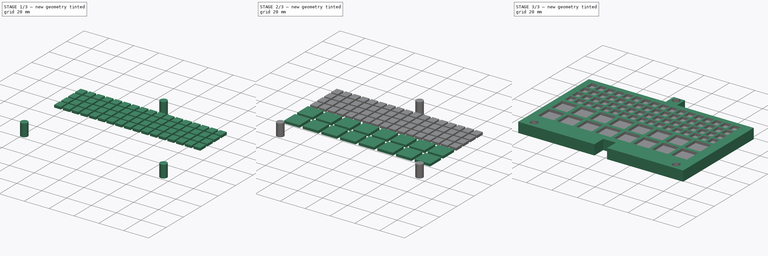
[diagram: build sequence overview — one tinted view per stage of 3, left to right]
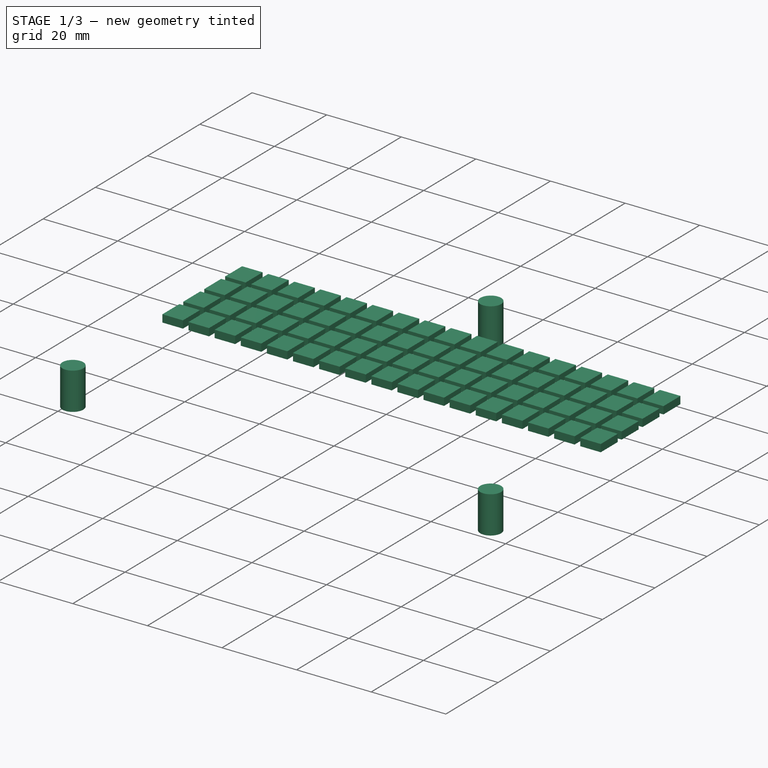
[diagram: stage 1 of 3 — iso view after this stage's code; geometry added in this stage tinted green]
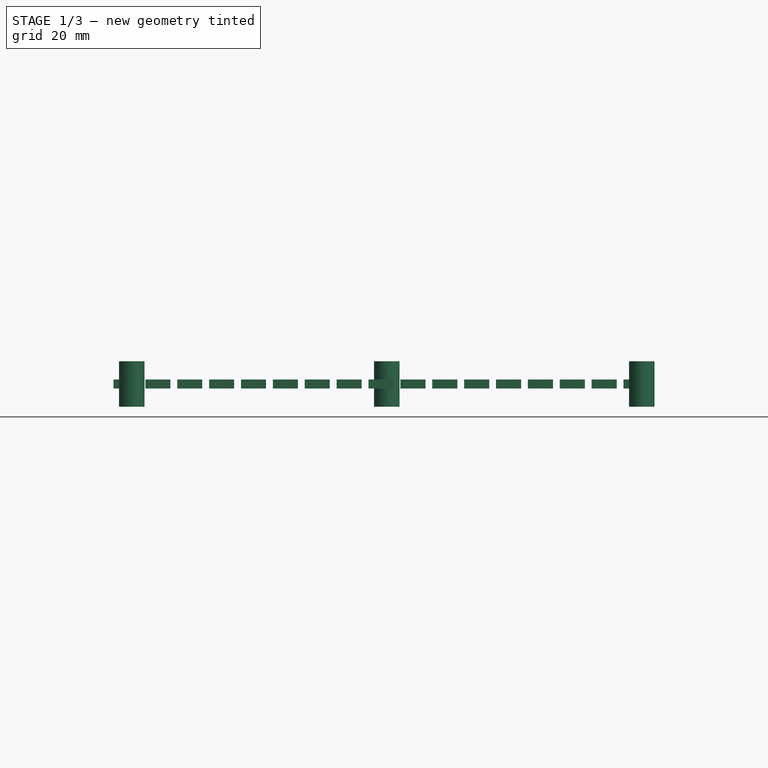
[diagram: stage 1 of 3 — front view after this stage's code; geometry added in this stage tinted green]
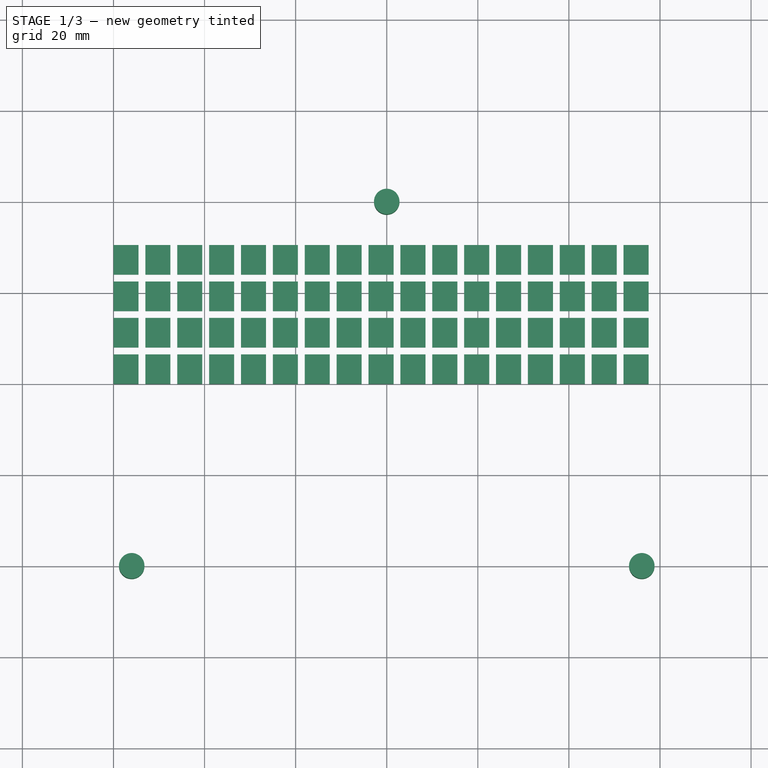
[diagram: stage 1 of 3 — top view after this stage's code; geometry added in this stage tinted green]
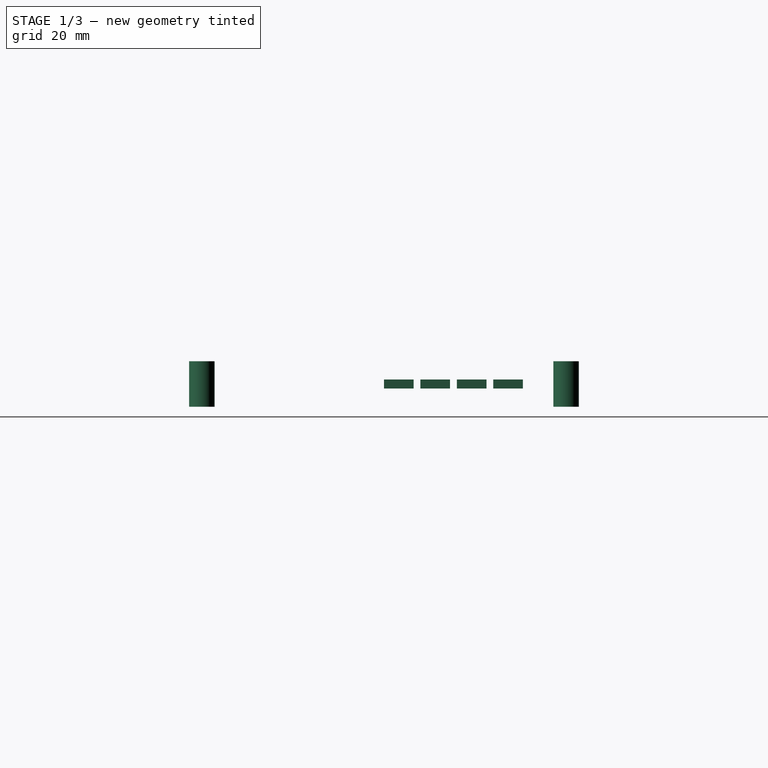
[diagram: stage 1 of 3 — right view after this stage's code; geometry added in this stage tinted green]
FCSTD DOCUMENT  (FreeCAD 0.17R13298 (Git))
Label: tray-lqfp64-so8
License: All rights reserved
LicenseURL: http://en.wikipedia.org/wiki/All_rights_reserved
objects: Sketcher::SketchObject×2, Part::Extrusion×2, Part::Box×2, Part::FeaturePython×2, Part::MultiFuse×1, Part::Cut×1
note: 10 computed .brp shape members not serialized (recipe doc carries the construction recipe); baked Part::Feature solids carry a one-line shape summary decoded from their .brp

FEATURE [Part::Box] Box001  label="Cube001"
  AttacherType = Attacher::AttachEngine3D
  Height = 2
  Length = 5.5
  Placement = pos=(-60,0,6) rot=(0,0,1;0rad)
  Width = 6.5
FEATURE [Part::FeaturePython] Array001  # Draft array (typed FeaturePython)
  Angle = 360
  ArrayType = 0
  Axis = (0,0,1)
  Base = -> Box001
  Center = (0,0,0)
  Fuse = false
  IntervalAxis = (0,0,0)
  IntervalX = (7,0,0)
  IntervalY = (0,8,0)
  IntervalZ = (0,0,0)
  NumberPolar = 1
  NumberX = 17
  NumberY = 4
  NumberZ = 1
FEATURE [Sketcher::SketchObject] Sketch001
  sketch-geometry (7):
    g0: LineSegment [constr] StartX=-56 StartY=40 StartZ=0 EndX=56 EndY=40 EndZ=0
    g1: LineSegment [constr] StartX=56 StartY=40 StartZ=0 EndX=56 EndY=-40 EndZ=0
    g2: LineSegment [constr] StartX=56 StartY=-40 StartZ=0 EndX=-56 EndY=-40 EndZ=0
    g3: LineSegment [constr] StartX=-56 StartY=-40 StartZ=0 EndX=-56 EndY=40 EndZ=0
    g4: Circle CenterX=0 CenterY=40 CenterZ=0 NormalX=0 NormalY=0 NormalZ=1 AngleXU=0 Radius=2.8
    g5: Circle CenterX=56 CenterY=-40 CenterZ=0 NormalX=0 NormalY=0 NormalZ=1 AngleXU=0 Radius=2.8
    g6: Circle CenterX=-56 CenterY=-40 CenterZ=0 NormalX=0 NormalY=0 NormalZ=1 AngleXU=0 Radius=2.8
  constraints (19):
    c: Coincident(g0,g1)
    c: Coincident(g1,g2)
    c: Coincident(g2,g3)
    c: Coincident(g3,g0)
    c: Horizontal(g0)
    c: Horizontal(g2)
    c: Vertical(g1)
    c: Vertical(g3)
    c: DistanceX(g0,g0) = 112
    c: DistanceY(g3,g3) = 80
    c: Symmetric(g0,g0,g-2)
    c: Symmetric(g0,g2,g-1)
    c: PointOnObject(g4,g-2)
    c: Coincident(g5,g1)
    c: Coincident(g6,g2)
    c: Radius(g6) = 2.8
    c: Equal(g6,g5)
    c: Equal(g6,g4)
    c: PointOnObject(g4,g0)
FEATURE [Part::Extrusion] Extrude001
  Base = -> Sketch001
  Dir = (0,0,1)
  DirMode = 2
  FaceMakerClass = Part::FaceMakerBullseye
  LengthFwd = 10
  LengthRev = 0
  Placement = pos=(0,0,2) rot=(0,0,1;0rad)
  Solid = true
  Symmetric = false
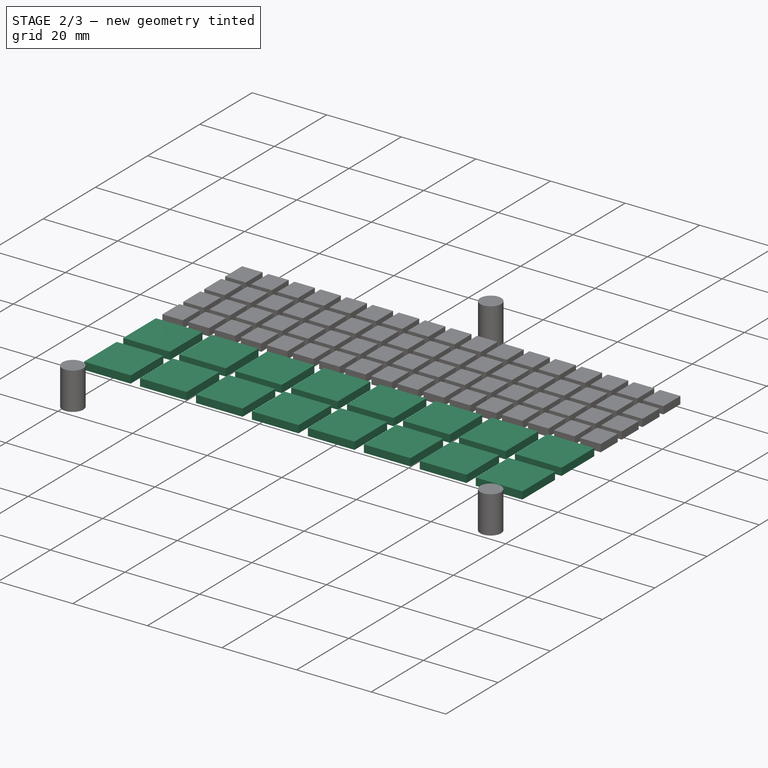
[diagram: stage 2 of 3 — iso view after this stage's code; geometry added in this stage tinted green]
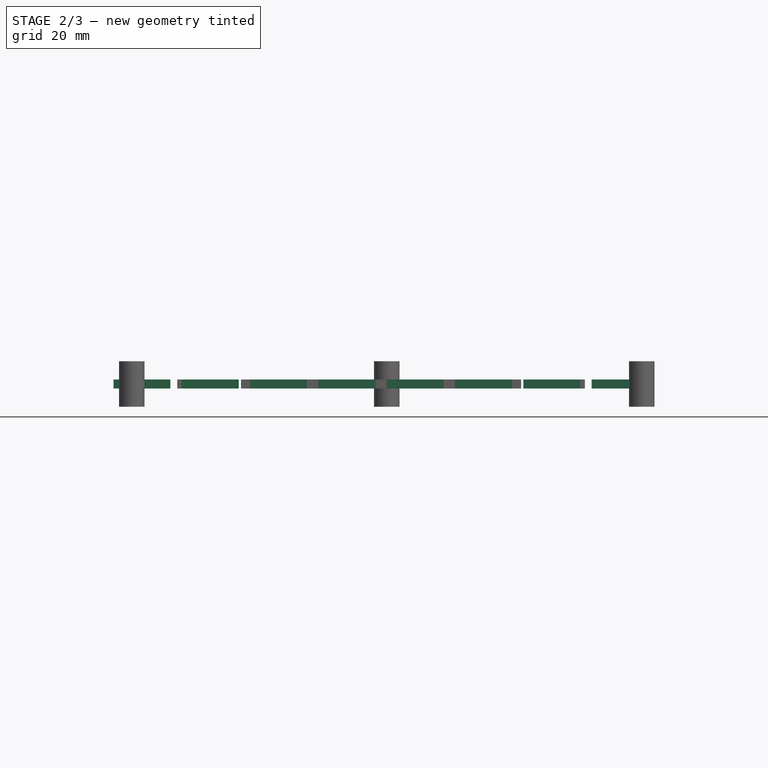
[diagram: stage 2 of 3 — front view after this stage's code; geometry added in this stage tinted green]
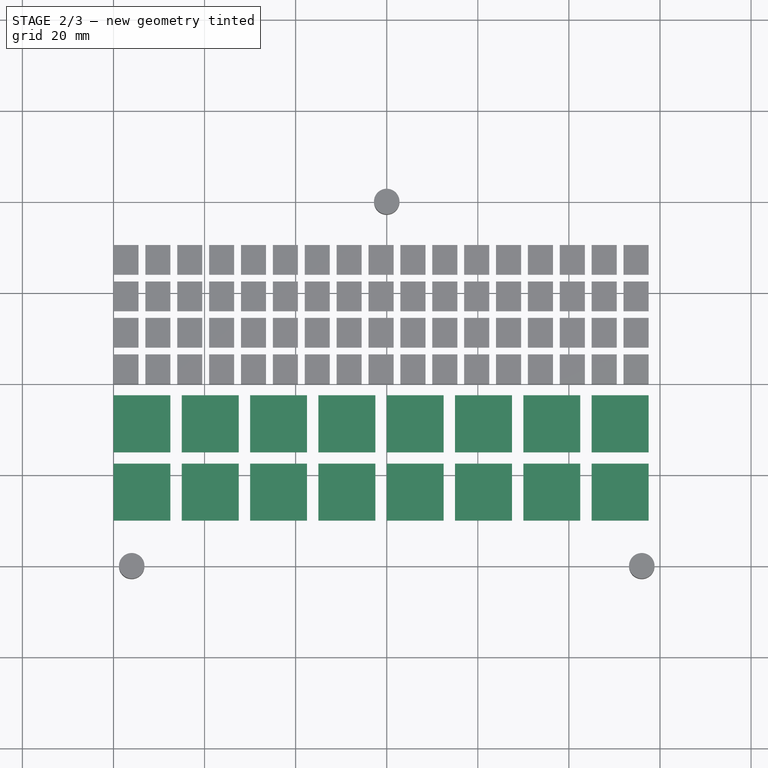
[diagram: stage 2 of 3 — top view after this stage's code; geometry added in this stage tinted green]
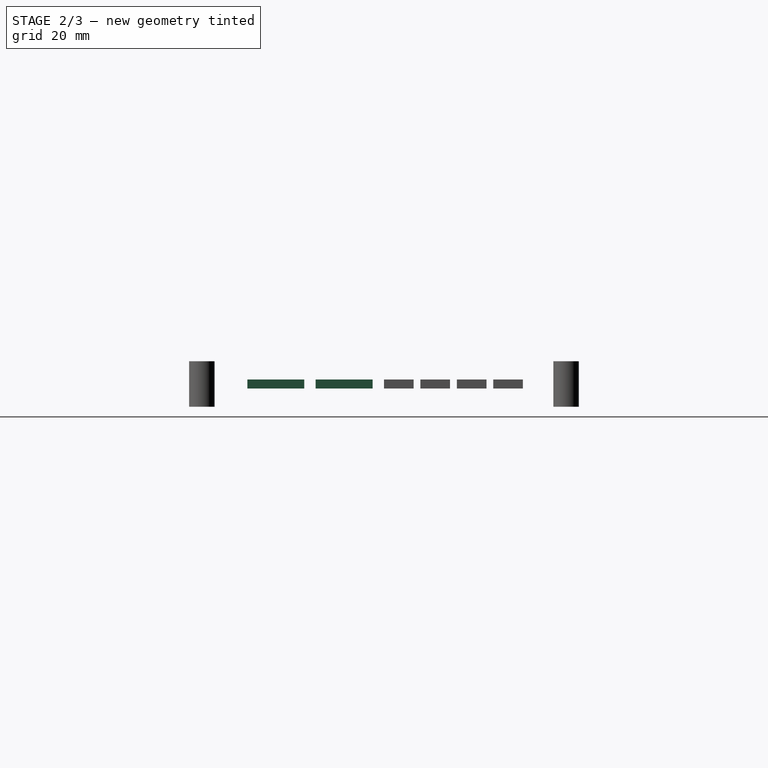
[diagram: stage 2 of 3 — right view after this stage's code; geometry added in this stage tinted green]
FEATURE [Part::Box] Box  label="Cube"
  AttacherType = Attacher::AttachEngine3D
  Height = 2
  Length = 12.5
  Placement = pos=(-60,-30,6) rot=(0,0,1;0rad)
  Width = 12.5
FEATURE [Part::FeaturePython] Array  # Draft array (typed FeaturePython)
  Angle = 360
  ArrayType = 0
  Axis = (0,0,1)
  Base = -> Box
  Center = (0,0,0)
  Fuse = false
  IntervalAxis = (0,0,0)
  IntervalX = (15,0,0)
  IntervalY = (0,15,0)
  IntervalZ = (0,0,0)
  NumberPolar = 1
  NumberX = 8
  NumberY = 2
  NumberZ = 1
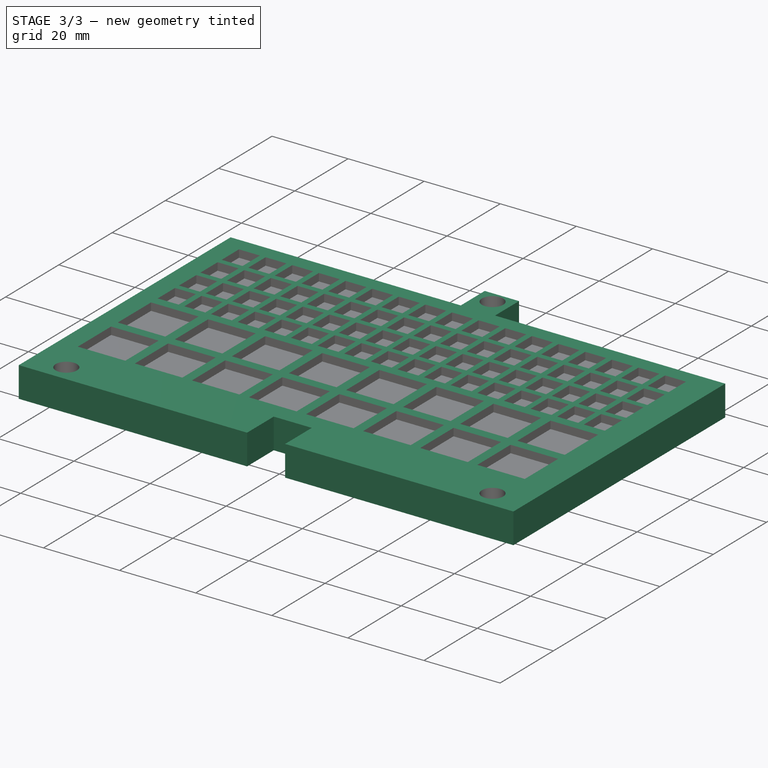
[diagram: stage 3 of 3 — iso view after this stage's code; geometry added in this stage tinted green]
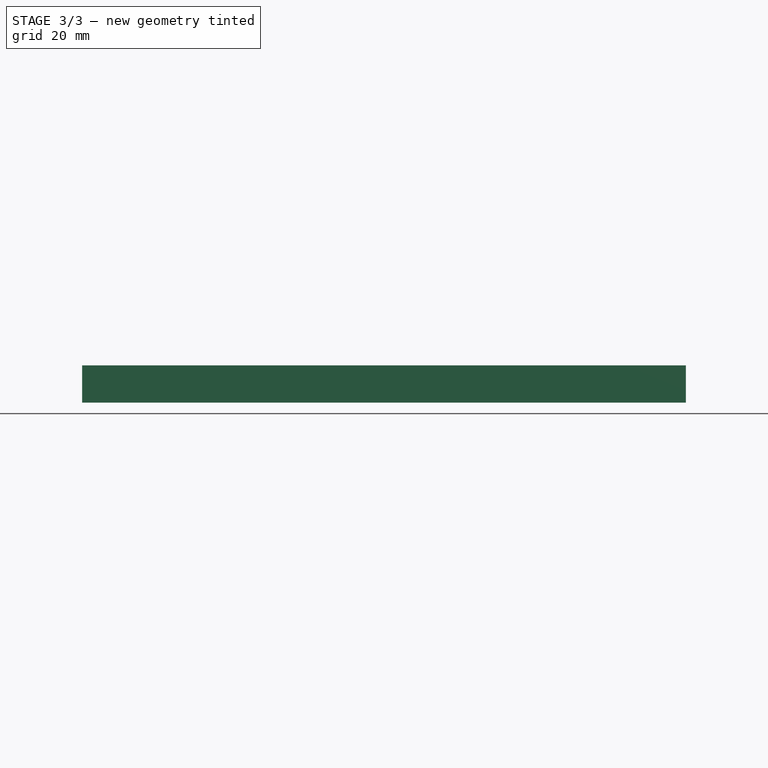
[diagram: stage 3 of 3 — front view after this stage's code; geometry added in this stage tinted green]
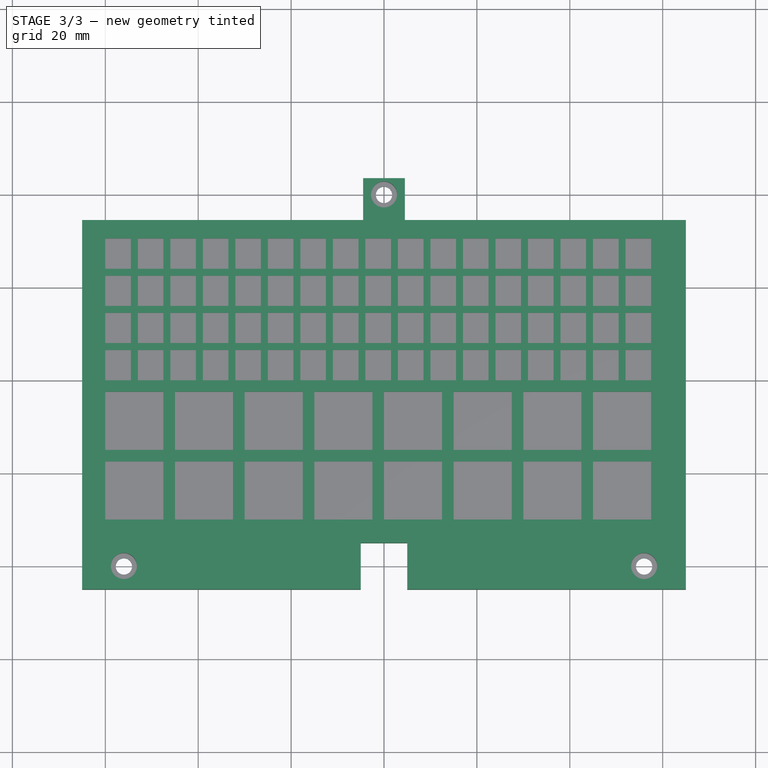
[diagram: stage 3 of 3 — top view after this stage's code; geometry added in this stage tinted green]
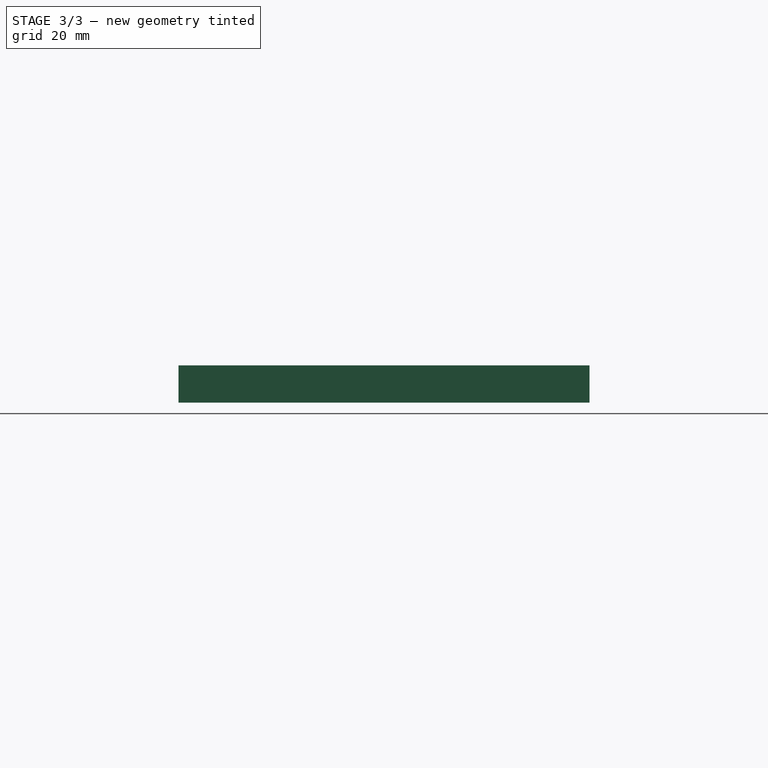
[diagram: stage 3 of 3 — right view after this stage's code; geometry added in this stage tinted green]
FEATURE [Sketcher::SketchObject] Sketch
  sketch-geometry (21):
    g0: LineSegment [constr] StartX=-56 StartY=40 StartZ=0 EndX=56 EndY=40 EndZ=0
    g1: LineSegment [constr] StartX=56 StartY=40 StartZ=0 EndX=56 EndY=-40 EndZ=0
    g2: LineSegment [constr] StartX=56 StartY=-40 StartZ=0 EndX=-56 EndY=-40 EndZ=0
    g3: LineSegment [constr] StartX=-56 StartY=-40 StartZ=0 EndX=-56 EndY=40 EndZ=0
    g4: Circle CenterX=0 CenterY=40 CenterZ=0 NormalX=0 NormalY=0 NormalZ=1 AngleXU=0 Radius=1.75
    g5: Circle CenterX=56 CenterY=-40 CenterZ=0 NormalX=0 NormalY=0 NormalZ=1 AngleXU=0 Radius=1.75
    g6: Circle CenterX=-56 CenterY=-40 CenterZ=0 NormalX=0 NormalY=0 NormalZ=1 AngleXU=0 Radius=1.75
    g7: LineSegment StartX=-65 StartY=-45 StartZ=0 EndX=-5 EndY=-45 EndZ=0
    g8: LineSegment StartX=-5 StartY=-45 StartZ=0 EndX=-5 EndY=-35 EndZ=0
    g9: LineSegment StartX=-5 StartY=-35 StartZ=0 EndX=5 EndY=-35 EndZ=0
    g10: LineSegment StartX=5 StartY=-35 StartZ=0 EndX=5 EndY=-45 EndZ=0
    g11: LineSegment StartX=5 StartY=-45 StartZ=0 EndX=65 EndY=-45 EndZ=0
    g12: LineSegment StartX=65 StartY=-45 StartZ=0 EndX=65 EndY=34.5 EndZ=0
    g13: LineSegment StartX=65 StartY=34.5 StartZ=0 EndX=4.5 EndY=34.5 EndZ=0
    g14: LineSegment StartX=4.5 StartY=34.5 StartZ=0 EndX=4.5 EndY=43.5 EndZ=0
    g15: LineSegment StartX=4.5 StartY=43.5 StartZ=0 EndX=-4.5 EndY=43.5 EndZ=0
    g16: LineSegment StartX=-4.5 StartY=43.5 StartZ=0 EndX=-4.5 EndY=34.5 EndZ=0
    g17: LineSegment StartX=-4.5 StartY=34.5 StartZ=0 EndX=-65 EndY=34.5 EndZ=0
    g18: LineSegment StartX=-65 StartY=34.5 StartZ=0 EndX=-65 EndY=-45 EndZ=0
    g19: GeomPoint X=0 Y=-40 Z=0
    g20: LineSegment [constr] StartX=-5 StartY=-35 StartZ=0 EndX=5 EndY=-45 EndZ=0
  constraints (58):
    c: Coincident(g0,g1)
    c: Coincident(g1,g2)
    c: Coincident(g2,g3)
    c: Coincident(g3,g0)
    c: Horizontal(g0)
    c: Horizontal(g2)
    c: Vertical(g1)
    c: Vertical(g3)
    c: DistanceX(g0,g0) = 112
    c: DistanceY(g3,g3) = 80
    c: Symmetric(g0,g0,g-2)
    c: Symmetric(g0,g2,g-1)
    c: PointOnObject(g4,g-2)
    c: Coincident(g5,g1)
    c: Coincident(g6,g2)
    c: Horizontal(g7)
    c: Coincident(g7,g8)
    c: Vertical(g8)
    c: Coincident(g8,g9)
    c: Horizontal(g9)
    c: Coincident(g9,g10)
    c: Vertical(g10)
    c: Coincident(g10,g11)
    c: Horizontal(g11)
    c: Coincident(g11,g12)
    c: Vertical(g12)
    c: Coincident(g12,g13)
    c: Horizontal(g13)
    c: Coincident(g13,g14)
    c: Vertical(g14)
    c: Coincident(g14,g15)
    c: Horizontal(g15)
    c: Coincident(g15,g16)
    c: Vertical(g16)
    c: Coincident(g16,g17)
    c: Horizontal(g17)
    c: Coincident(g17,g18)
    c: Coincident(g18,g7)
    c: Vertical(g18)
    c: Radius(g6) = 1.75
    c: Equal(g6,g5)
    c: Equal(g6,g4)
    c: Equal(g8,g10)
    c: Equal(g10,g9)
    c: Equal(g7,g11)
    c: Symmetric(g7,g10,g-2)
    c: Symmetric(g16,g13,g-2)
    c: DistanceX(g15,g15) = 9
    c: DistanceX(g9,g9) = 10
    c: PointOnObject(g4,g0)
    c: PointOnObject(g19,g2)
    c: PointOnObject(g19,g-2)
    c: Coincident(g20,g8)
    c: Coincident(g20,g10)
    c: PointOnObject(g19,g20)
    c: DistanceX(g7,g11) = 130
    c: DistanceY(g12,g0) = 5.5
    c: Equal(g14,g15)
FEATURE [Part::Extrusion] Extrude
  Base = -> Sketch
  Dir = (0,0,1)
  DirMode = 2
  FaceMakerClass = Part::FaceMakerBullseye
  LengthFwd = 8
  LengthRev = 0
  Solid = true
  Symmetric = false
FEATURE [Part::MultiFuse] Fusion
  Shapes = -> [Array,Array001,Extrude001]
FEATURE [Part::Cut] Cut
  Base = -> Extrude
  Tool = -> Fusion
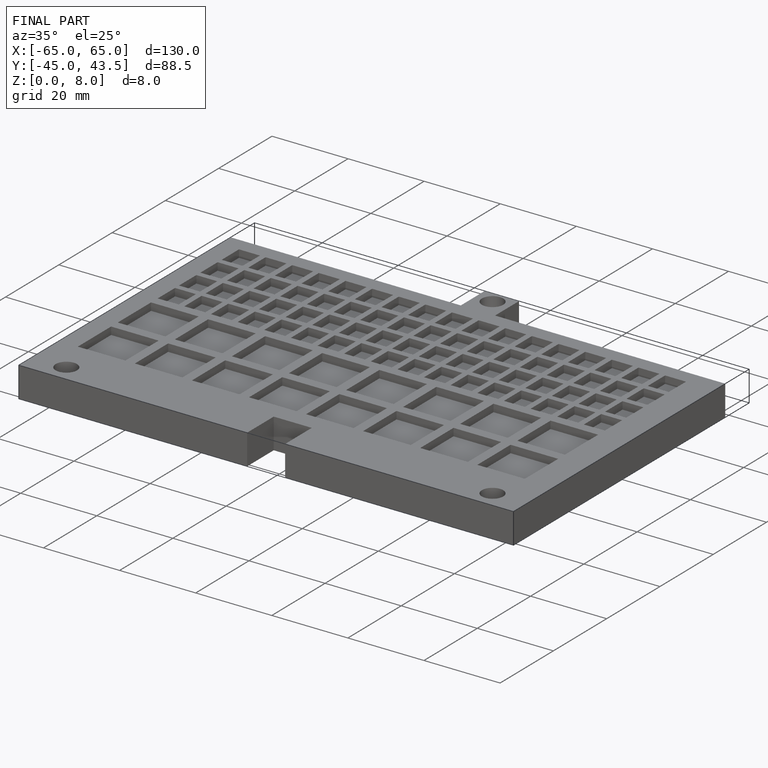
[diagram: finished part — iso view with bounding-box wireframe]
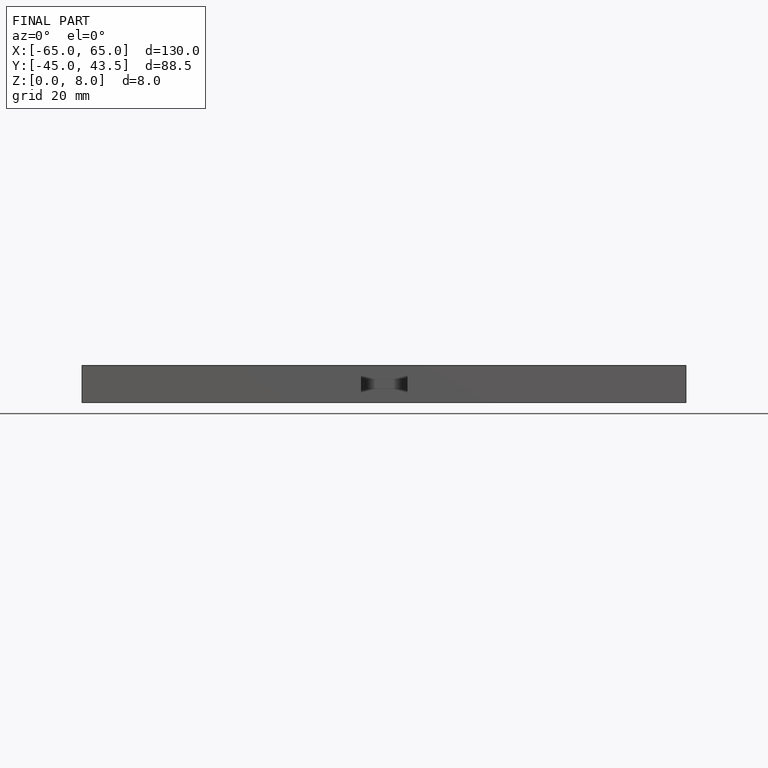
[diagram: finished part — front view with bounding-box wireframe]
